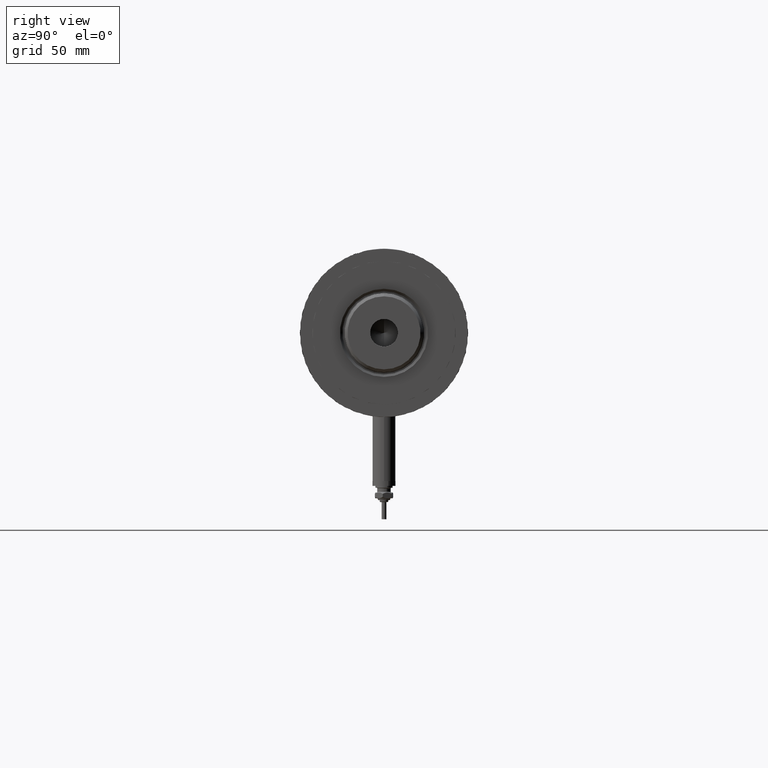
[diagram: clean part render]
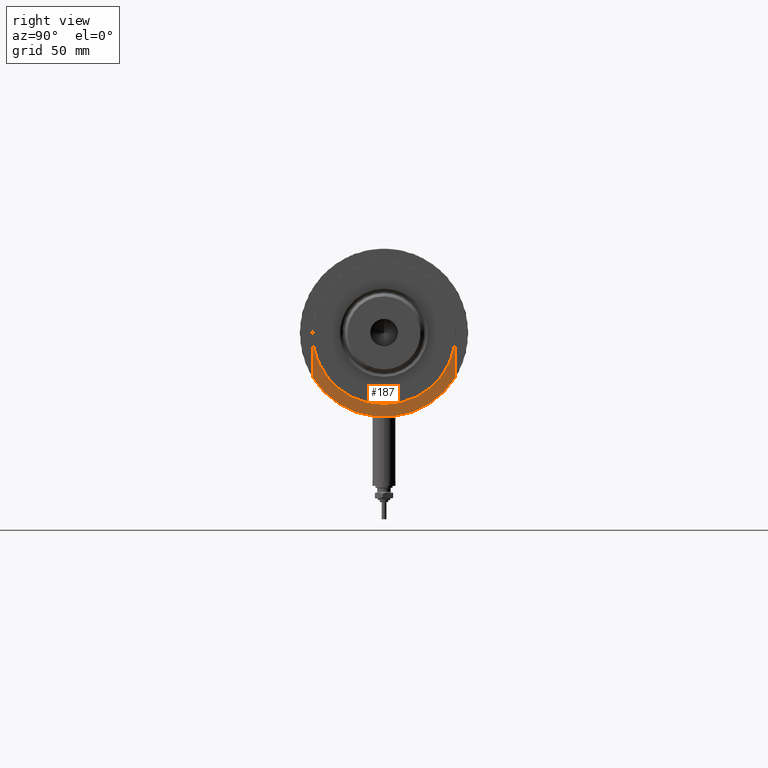
[diagram: same view with one face highlighted and labeled with its STEP entity id]
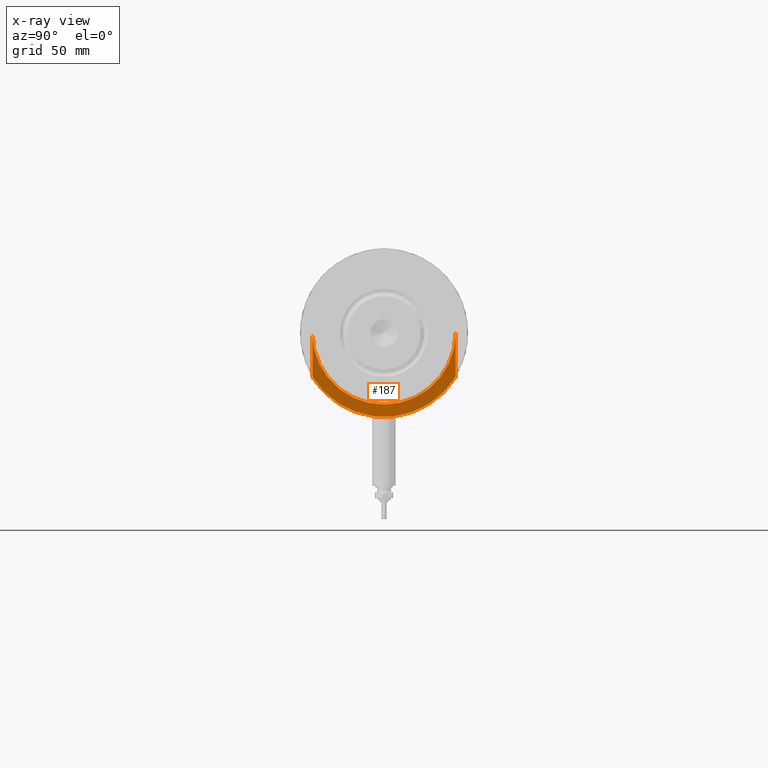
[diagram: x-ray of the same camera — body ghosted, the highlighted face saturated]
A machine part, right view. The second image highlights one B-rep face of the part: STEP entity #187.
The next image is the same camera in x-ray: the body ghosted, the highlighted face saturated — about 0% of this face is hidden behind the body in this view.
In plain terms, the highlighted planar face has unit normal (1, 0, -0).
Its self-contained STEP definition (entity closure, byte-faithful):
#187 = ADVANCED_FACE ( 'NONE', ( #559 ), #2351, .T. ) ;
#196 = DIRECTION ( 'NONE',  ( 1.000000000000000000, 0.000000000000000000, 0.000000000000000000 ) ) ;
#559 = FACE_OUTER_BOUND ( 'NONE', #4311, .T. ) ;
#655 = VERTEX_POINT ( 'NONE', #3767 ) ;
#806 = VERTEX_POINT ( 'NONE', #5230 ) ;
#948 = CARTESIAN_POINT ( 'NONE',  ( 0.000000000000000000, 0.000000000000000000, 27.89999999999999858 ) ) ;
#1034 = VECTOR ( 'NONE', #4474, 1000.000000000000000 ) ;
#1379 = ORIENTED_EDGE ( 'NONE', *, *, #1385, .T. ) ;
#1385 = EDGE_CURVE ( 'NONE', #806, #2555, #3316, .T. ) ;
#1403 = DIRECTION ( 'NONE',  ( 0.000000000000000000, 0.000000000000000000, 1.000000000000000000 ) ) ;
#1497 = DIRECTION ( 'NONE',  ( -0.000000000000000000, -0.000000000000000000, -1.000000000000000000 ) ) ;
#1901 = AXIS2_PLACEMENT_3D ( 'NONE', #5353, #3965, #3504 ) ;
#1967 = DIRECTION ( 'NONE',  ( -0.000000000000000000, -0.000000000000000000, -1.000000000000000000 ) ) ;
#2100 = VERTEX_POINT ( 'NONE', #4531 ) ;
#2351 = PLANE ( 'NONE',  #2916 ) ;
#2382 = AXIS2_PLACEMENT_3D ( 'NONE', #948, #1497, #4630 ) ;
#2495 = CARTESIAN_POINT ( 'NONE',  ( 0.000000000000000000, 0.000000000000000000, 27.89999999999999858 ) ) ;
#2555 = VERTEX_POINT ( 'NONE', #5438 ) ;
#2603 = LINE ( 'NONE', #3107, #1034 ) ;
#2772 = CARTESIAN_POINT ( 'NONE',  ( 0.000000000000000000, 0.000000000000000000, 27.89999999999999858 ) ) ;
#2900 = EDGE_CURVE ( 'NONE', #2555, #655, #5073, .T. ) ;
#2916 = AXIS2_PLACEMENT_3D ( 'NONE', #2772, #1403, #6002 ) ;
#3087 = LINE ( 'NONE', #4027, #5079 ) ;
#3107 = CARTESIAN_POINT ( 'NONE',  ( -23.01629857296780557, 37.50000000000000000, 27.89999999999999858 ) ) ;
#3242 = EDGE_CURVE ( 'NONE', #4325, #655, #3087, .T. ) ;
#3316 = CIRCLE ( 'NONE', #5727, 37.50000000000000000 ) ;
#3504 = DIRECTION ( 'NONE',  ( 1.000000000000000000, 0.000000000000000000, 0.000000000000000000 ) ) ;
#3588 = EDGE_CURVE ( 'NONE', #806, #2100, #2603, .T. ) ;
#3680 = EDGE_CURVE ( 'NONE', #4325, #2100, #4203, .T. ) ;
#3767 = CARTESIAN_POINT ( 'NONE',  ( 0.000000000000000000, -37.50000000000000000, 27.89999999999999858 ) ) ;
#3791 = ORIENTED_EDGE ( 'NONE', *, *, #3680, .T. ) ;
#3965 = DIRECTION ( 'NONE',  ( 0.000000000000000000, 0.000000000000000000, 1.000000000000000000 ) ) ;
#4027 = CARTESIAN_POINT ( 'NONE',  ( -23.01629857296780557, -37.50000000000000000, 27.89999999999999858 ) ) ;
#4040 = CARTESIAN_POINT ( 'NONE',  ( 23.01629857296780557, -37.50000000000000000, 27.89999999999999858 ) ) ;
#4203 = CIRCLE ( 'NONE', #1901, 44.00000000000000000 ) ;
#4311 = EDGE_LOOP ( 'NONE', ( #5717, #1379, #5525, #5527, #3791 ) ) ;
#4325 = VERTEX_POINT ( 'NONE', #4040 ) ;
#4474 = DIRECTION ( 'NONE',  ( 1.000000000000000000, 0.000000000000000000, 0.000000000000000000 ) ) ;
#4531 = CARTESIAN_POINT ( 'NONE',  ( 23.01629857296780557, 37.50000000000000000, 27.89999999999999858 ) ) ;
#4630 = DIRECTION ( 'NONE',  ( 1.000000000000000000, 0.000000000000000000, 0.000000000000000000 ) ) ;
#5073 = CIRCLE ( 'NONE', #2382, 37.50000000000000000 ) ;
#5079 = VECTOR ( 'NONE', #5443, 1000.000000000000000 ) ;
#5230 = CARTESIAN_POINT ( 'NONE',  ( 0.000000000000000000, 37.50000000000000000, 27.89999999999999858 ) ) ;
#5353 = CARTESIAN_POINT ( 'NONE',  ( 0.000000000000000000, 0.000000000000000000, 27.89999999999999858 ) ) ;
#5438 = CARTESIAN_POINT ( 'NONE',  ( 37.50000000000000000, 0.000000000000000000, 27.89999999999999858 ) ) ;
#5443 = DIRECTION ( 'NONE',  ( -1.000000000000000000, -0.000000000000000000, -0.000000000000000000 ) ) ;
#5525 = ORIENTED_EDGE ( 'NONE', *, *, #2900, .T. ) ;
#5527 = ORIENTED_EDGE ( 'NONE', *, *, #3242, .F. ) ;
#5717 = ORIENTED_EDGE ( 'NONE', *, *, #3588, .F. ) ;
#5727 = AXIS2_PLACEMENT_3D ( 'NONE', #2495, #1967, #196 ) ;
#6002 = DIRECTION ( 'NONE',  ( 1.000000000000000000, 0.000000000000000000, -0.000000000000000000 ) ) ;